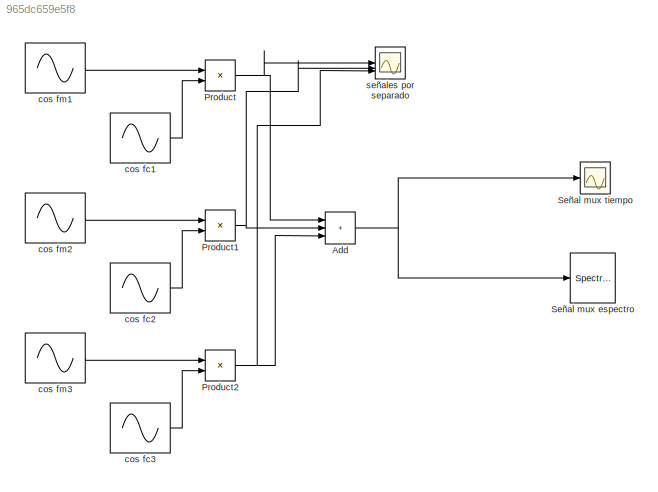
MODEL slx_965dc659e5f8
KIND model
CONFIG AbsTol = auto
CONFIG EnableMultiTasking = off
CONFIG FixedStep = auto
CONFIG MaxStep = auto
CONFIG MinStep = auto
CONFIG RelTol = 1e-3
CONFIG SampleTimeConstraint = Unconstrained
CONFIG SolverName = VariableStepAuto
CONFIG StartTime = 0.0
CONFIG StopTime = 0.1
BLOCK [Sum] Add
  IconShape = rectangular
  Inputs = +++
BLOCK [Product] Product
BLOCK [Product] Product1
BLOCK [Product] Product2
BLOCK [SpectrumAnalyzer] Señal mux espectro
  GraphicalSettings = {"GraphicalSettings":{"Style":{"BackgroundColor":[0.12941176470588237,0.12941176470588237,0.12941176470588237],"AxesColor":[0.07058823529411765,0.07058823529411765,0.07058823529411765],"LabelsColor":[0.8509803921568627,0.8509803921568627,0.8509803921568627],"PreserveColors":false,"Visible":[true],"LineStyle":["-"],"LineColor":[[1,1,0.06666666666666667]],"LineWidth":[1.5],"Marker":["none"],"FontSiz...<+929ch>
  SampleRate = 44.1e3
  SampleRateSource = Property
  ScopeFrameLocation = window
  ShowLegend = on
  StartFrequency = 20
  StopFrequency = 20e3
  WasSavedAsWebScope = on
  WindowPosition = [1.000000,1.000000,1920.000000,1057.000000,]
  YLimits = [-54.57615141,25.77248512]
BLOCK [Scope] Señal mux tiempo
  Floating = off
  NumInputPorts = 1
  ScopeSpecificationString = Simulink.scopes.TimeScopeBlockCfg('CurrentConfiguration', extmgr.ConfigurationSet(extmgr.Configuration('Core','General UI',true),extmgr.Configuration('Core','Source UI',true),extmgr.Configuration('Sources','WiredSimulink',true,'DataLoggingVariableName','ScopeData1'),extmgr.Configuration('Visuals','Time Domain',true,'SerializedDisplays',{struct('MinYLimReal','-3.33034','MaxYLimReal','3.70337','YLab...<+1435ch>
BLOCK [Sin] cos fc1
  Frequency = fc1_mux
  Phase = pi/2
  SampleTime = ts_mux
BLOCK [Sin] cos fc2
  Frequency = fc2_mux
  Phase = pi/2
  SampleTime = ts_mux
BLOCK [Sin] cos fc3
  Frequency = fc3_mux
  Phase = pi/2
  SampleTime = ts_mux
BLOCK [Sin] cos fm1
  Frequency = fm1_mux
  Phase = pi/2
  SampleTime = ts_mux
BLOCK [Sin] cos fm2
  Frequency = fm2_mux
  Phase = pi/2
  SampleTime = ts_mux
BLOCK [Sin] cos fm3
  Frequency = fm3_mux
  Phase = pi/2
  SampleTime = ts_mux
BLOCK [Scope] señales por separado
  Floating = off
  NumInputPorts = 3
  ScopeSpecificationString = Simulink.scopes.TimeScopeBlockCfg('CurrentConfiguration', extmgr.ConfigurationSet(extmgr.Configuration('Core','General UI',true),extmgr.Configuration('Core','Source UI',true),extmgr.Configuration('Sources','WiredSimulink',true,'DataLoggingVariableName','ScopeData1'),extmgr.Configuration('Visuals','Time Domain',true,'SerializedDisplays',{struct('MinYLimReal','-1.25','MaxYLimReal','1.25','YLabelReal...<+2719ch>
NET Add:1 -> Señal mux espectro:1, Señal mux tiempo:1
NET Product1:1 -> Add:2, señales por separado:2
NET Product2:1 -> Add:3, señales por separado:3
NET Product:1 -> Add:1, señales por separado:1
LINE cos fc1:1 -> Product:2
LINE cos fc2:1 -> Product1:2
LINE cos fc3:1 -> Product2:2
LINE cos fm1:1 -> Product:1
LINE cos fm2:1 -> Product1:1
LINE cos fm3:1 -> Product2:1
note: NET lines group one-source signal fan-out (src -> all destinations, sorted); 1:1 wires keep LINE
